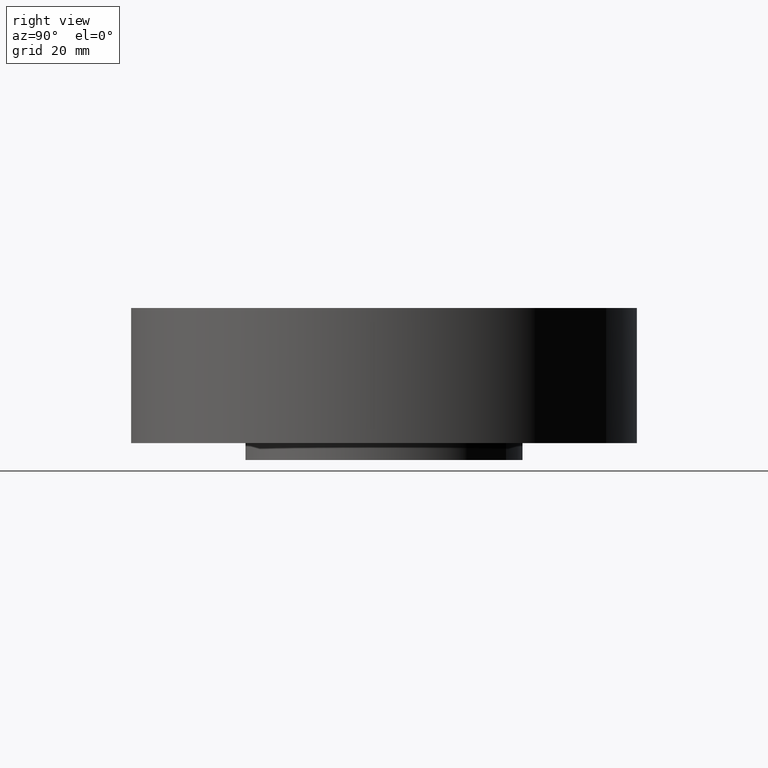
[diagram: clean part render]
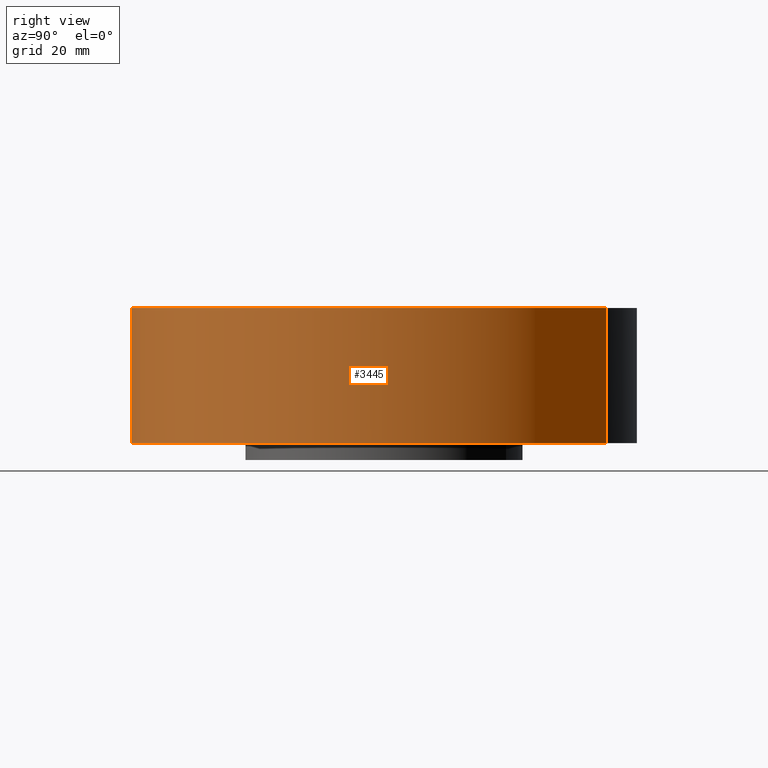
[diagram: same view with one face highlighted and labeled with its STEP entity id]
A machine part, right view. The second image highlights one B-rep face of the part: STEP entity #3445.
In plain terms, the highlighted cylindrical surface (partial cylindrical patch) has radius 95.25 mm, axis along (0, 0, -1).
Its self-contained STEP definition (entity closure, byte-faithful):
#3247=AXIS2_PLACEMENT_3D('Circle Axis2P3D',#3245,#3246,$) ;
#3406=AXIS2_PLACEMENT_3D('Cylinder Axis2P3D',#3403,#3404,#3405) ;
#3436=AXIS2_PLACEMENT_3D('Circle Axis2P3D',#3434,#3435,$) ;
#3240=CARTESIAN_POINT('Vertex',(-1.79784576977,-3.2909346071,-3.83245491335E-014)) ;
#3242=CARTESIAN_POINT('Vertex',(1.79784576977,3.2909346071,-3.83245491335E-014)) ;
#3245=CARTESIAN_POINT('Axis2P3D Location',(0.,0.,0.)) ;
#3403=CARTESIAN_POINT('Axis2P3D Location',(0.,0.,0.875000000003)) ;
#3408=CARTESIAN_POINT('Line Origine',(-1.79784576977,-3.2909346071,1.)) ;
#3412=CARTESIAN_POINT('Vertex',(-1.79784576977,-3.2909346071,2.00000000001)) ;
#3419=CARTESIAN_POINT('Vertex',(1.79784576977,3.2909346071,2.00000000001)) ;
#3422=CARTESIAN_POINT('Line Origine',(1.79784576977,3.2909346071,1.)) ;
#3434=CARTESIAN_POINT('Axis2P3D Location',(0.,0.,2.00000000001)) ;
#3246=DIRECTION('Axis2P3D Direction',(0.,0.,-0.0393700787402)) ;
#3404=DIRECTION('Axis2P3D Direction',(0.,0.,-0.0393700787402)) ;
#3405=DIRECTION('Axis2P3D XDirection',(0.0188750212049,0.0345504945626,0.)) ;
#3409=DIRECTION('Vector Direction',(0.,0.,-0.0393700787402)) ;
#3423=DIRECTION('Vector Direction',(0.,0.,-0.0393700787402)) ;
#3435=DIRECTION('Axis2P3D Direction',(0.,0.,-0.0393700787402)) ;
#3410=VECTOR('Line Direction',#3409,0.0393700787402) ;
#3424=VECTOR('Line Direction',#3423,0.0393700787402) ;
#3440=ORIENTED_EDGE('',*,*,#3249,.F.) ;
#3441=ORIENTED_EDGE('',*,*,#3426,.T.) ;
#3442=ORIENTED_EDGE('',*,*,#3438,.T.) ;
#3443=ORIENTED_EDGE('',*,*,#3414,.F.) ;
#3445=ADVANCED_FACE('PartBody',(#3444),#3407,.T.) ;
#3248=CIRCLE('generated circle',#3247,3.75000000002) ;
#3437=CIRCLE('generated circle',#3436,3.75000000002) ;
#3407=CYLINDRICAL_SURFACE('generated cylinder',#3406,3.75000000002) ;
#3249=EDGE_CURVE('',#3243,#3241,#3248,.T.) ;
#3414=EDGE_CURVE('',#3241,#3413,#3411,.F.) ;
#3426=EDGE_CURVE('',#3243,#3420,#3425,.F.) ;
#3438=EDGE_CURVE('',#3420,#3413,#3437,.T.) ;
#3439=EDGE_LOOP('',(#3440,#3441,#3442,#3443)) ;
#3444=FACE_OUTER_BOUND('',#3439,.T.) ;
#3411=LINE('Line',#3408,#3410) ;
#3425=LINE('Line',#3422,#3424) ;
#3241=VERTEX_POINT('',#3240) ;
#3243=VERTEX_POINT('',#3242) ;
#3413=VERTEX_POINT('',#3412) ;
#3420=VERTEX_POINT('',#3419) ;